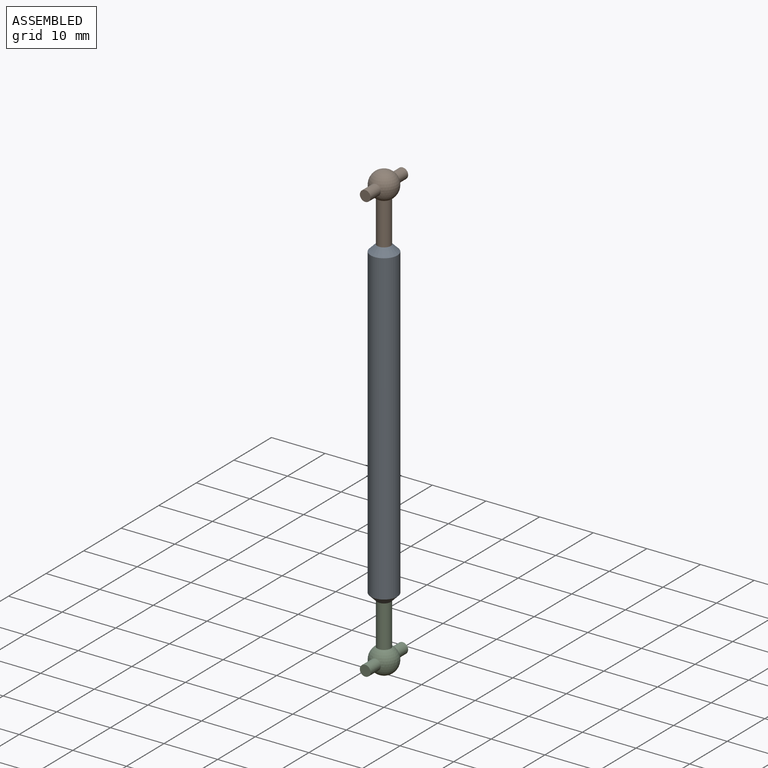
[diagram: assembled view]
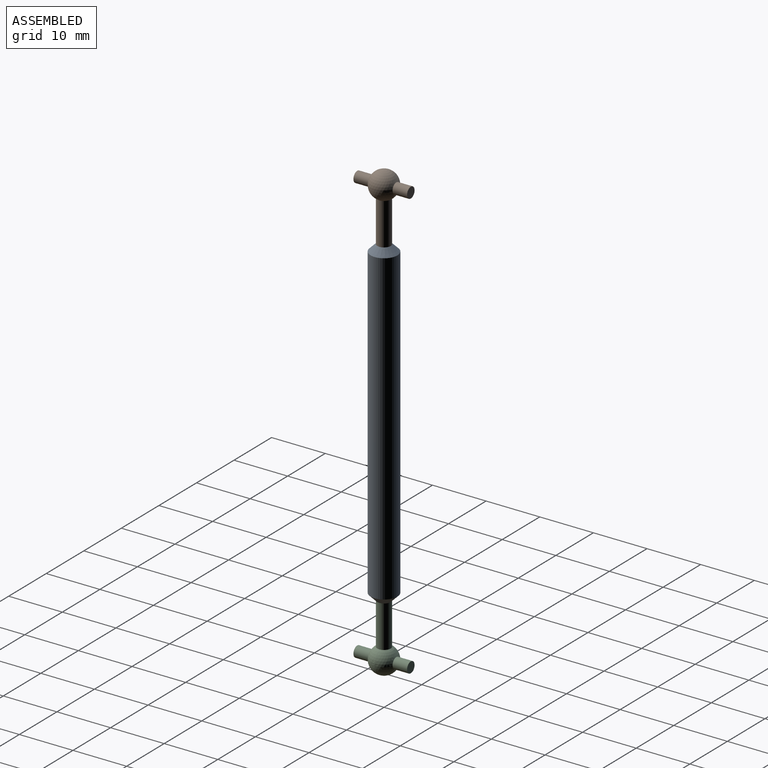
[diagram: assembled view, second angle]
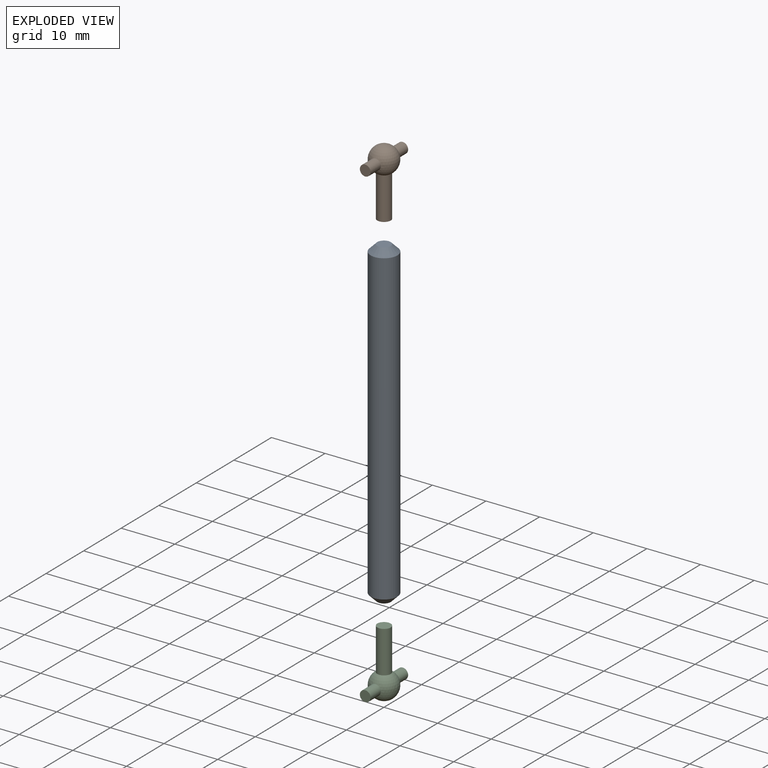
[diagram: exploded view]
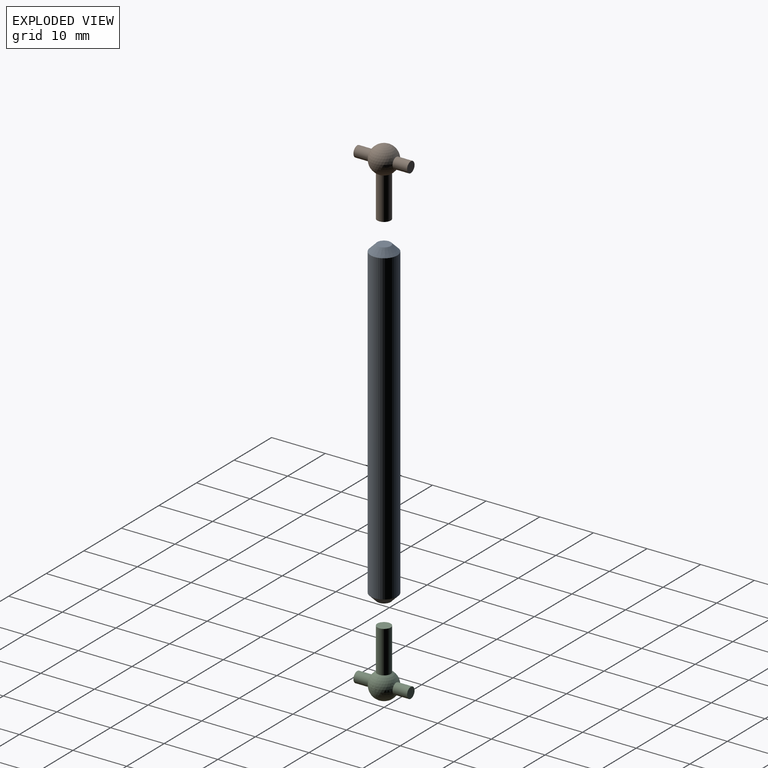
[diagram: exploded view, second angle]
ASSEMBLY  parts=3 mates=2
PART A: 5 faces, bbox 5x60x5 mm
  f0: cylinder r=2.5mm len=57.5mm, axis (0,1,0), area 903.2mm2, adj f3,f4
  f1: plane 2.5x2.5mm, normal (0,-1,0), area 4.9mm2, adj f4
  f2: plane 2.5x2.5mm, normal (0,1,0), area 4.9mm2, adj f3
  f3: cone r=2.5mm half-angle=45deg, axis (0,-1,0), area 20.8mm2, adj f0,f2
  f4: cone r=1.25mm half-angle=45deg, axis (0,1,0), area 20.8mm2, adj f0,f1
PART B: 7 faces, bbox 12.5x10x5 mm
  f0: sphere r=2.5mm, area 66.7mm2, adj f2,f3,f6
  f1: plane 2.5x2.5mm, normal (1,0,0), area 4.9mm2, adj f2
  f2: cylinder r=1.25mm len=7.84mm, axis (1,0,0), area 61.5mm2, adj f0,f1
  f3: cylinder r=1mm len=2.71mm, axis (0,1,0), area 17mm2, adj f0,f4
  f4: plane 2x2mm, normal (0,1,0), area 3.1mm2, adj f3
  f5: plane 2x2mm, normal (0,-1,0), area 3.1mm2, adj f6
  f6: cylinder r=1mm len=2.71mm, axis (0,-1,0), area 17mm2, adj f0,f5
PART C: same geometry as B
PLACE A rot(axis=(0,0.71,-0.71),180deg) t=(0.02,0,-47.52)mm
PLACE B rot(axis=(0,1,0),90deg) t=(0.02,0,22.48)mm fixed
PLACE C rot(axis=(0,-1,0),90deg) t=(0.02,0,-57.52)mm
MATE fastened A.f0 <-> C.f2  axis (0,0,-1) through (0.02,0,-47.52)mm
MATE fastened A.f0 <-> B.f2  axis (0,0,1) through (0.02,0,12.48)mm
